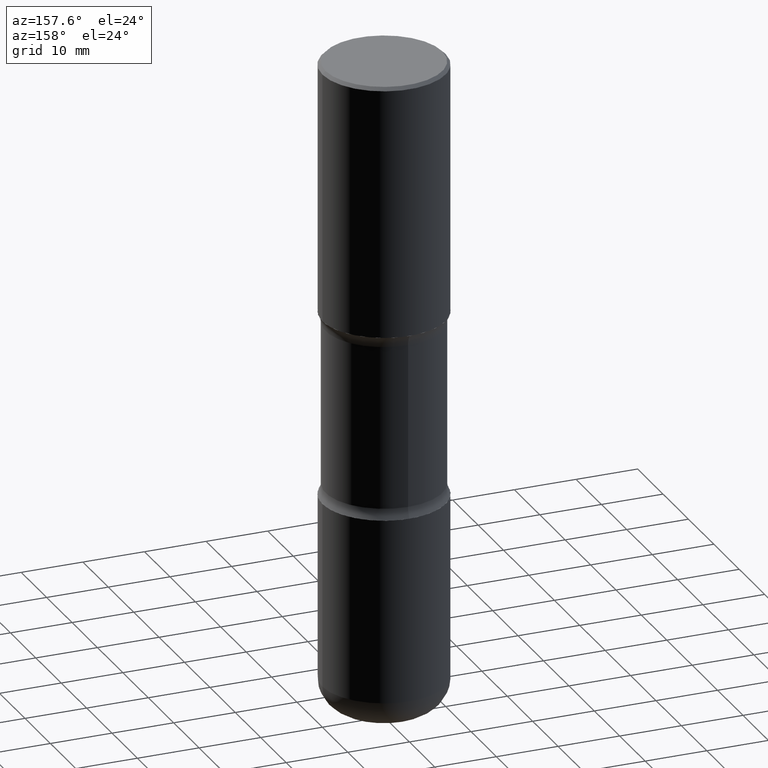
[diagram: clean part render]
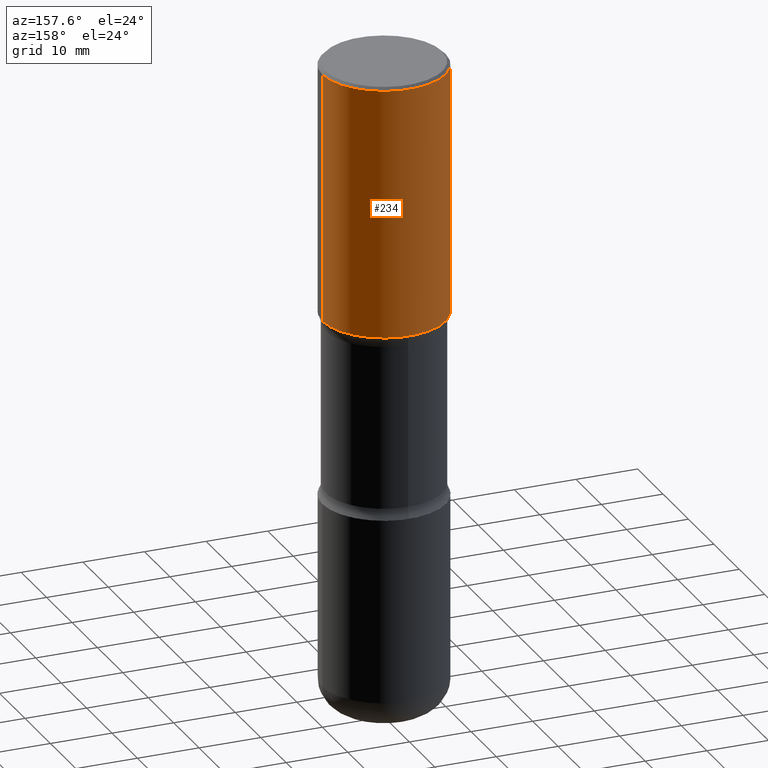
[diagram: same view with one face highlighted and labeled with its STEP entity id]
A machine part, auxiliary view. The second image highlights one B-rep face of the part: STEP entity #234.
In plain terms, the highlighted cylindrical surface (partial cylindrical patch) has radius 10 mm, axis along (-0, 0, 1).
Its self-contained STEP definition (entity closure, byte-faithful):
#3 = DIRECTION ( 'NONE',  ( 1.000000000000000000, -6.982962677686266711E-15, 0.000000000000000000 ) ) ;
#5 = CARTESIAN_POINT ( 'NONE',  ( -0.3937000000000003830, 2.797406750687517153E-15, -1.936584745033358137E-29 ) ) ;
#28 = EDGE_LOOP ( 'NONE', ( #452, #456, #228, #482 ) ) ;
#34 = AXIS2_PLACEMENT_3D ( 'NONE', #490, #359, #524 ) ;
#46 = DIRECTION ( 'NONE',  ( -2.445468806185136877E-29, 3.491481338843145188E-15, 1.000000000000000000 ) ) ;
#49 = AXIS2_PLACEMENT_3D ( 'NONE', #215, #175, #337 ) ;
#104 = VERTEX_POINT ( 'NONE', #182 ) ;
#107 = CARTESIAN_POINT ( 'NONE',  ( 0.3937000000000004385, -8.384792435231807440E-15, -1.614100000000000090 ) ) ;
#127 = VECTOR ( 'NONE', #46, 39.37007874015748143 ) ;
#133 = FACE_OUTER_BOUND ( 'NONE', #28, .T. ) ;
#137 = CARTESIAN_POINT ( 'NONE',  ( 0.3937000000000002164, -2.770807688499516917E-15, -0.02000000000000006981 ) ) ;
#143 = CIRCLE ( 'NONE', #34, 0.3937000000000004385 ) ;
#167 = VERTEX_POINT ( 'NONE', #476 ) ;
#175 = DIRECTION ( 'NONE',  ( -2.445468806185136597E-29, 3.491481338843145583E-15, 1.000000000000000000 ) ) ;
#179 = EDGE_CURVE ( 'NONE', #104, #167, #298, .T. ) ;
#182 = CARTESIAN_POINT ( 'NONE',  ( -0.3937000000000004385, -5.530807721427478371E-17, -1.614100000000000090 ) ) ;
#198 = VERTEX_POINT ( 'NONE', #137 ) ;
#215 = CARTESIAN_POINT ( 'NONE',  ( 0.000000000000000000, 0.000000000000000000, 0.000000000000000000 ) ) ;
#228 = ORIENTED_EDGE ( 'NONE', *, *, #246, .F. ) ;
#234 = ADVANCED_FACE ( 'NONE', ( #133 ), #383, .T. ) ;
#244 = LINE ( 'NONE', #510, #438 ) ;
#246 = EDGE_CURVE ( 'NONE', #198, #167, #538, .T. ) ;
#295 = DIRECTION ( 'NONE',  ( -2.445468806185136597E-29, 3.491481338843145583E-15, 1.000000000000000000 ) ) ;
#298 = LINE ( 'NONE', #5, #127 ) ;
#337 = DIRECTION ( 'NONE',  ( 1.000000000000000000, -6.982962677686266711E-15, 4.876176775795935793E-29 ) ) ;
#355 = VERTEX_POINT ( 'NONE', #107 ) ;
#359 = DIRECTION ( 'NONE',  ( -2.445468806185136597E-29, 3.491481338843145583E-15, 1.000000000000000000 ) ) ;
#368 = DIRECTION ( 'NONE',  ( -2.445468806185136877E-29, 3.491481338843145188E-15, 1.000000000000000000 ) ) ;
#383 = CYLINDRICAL_SURFACE ( 'NONE', #49, 0.3937000000000003830 ) ;
#402 = EDGE_CURVE ( 'NONE', #355, #104, #143, .T. ) ;
#438 = VECTOR ( 'NONE', #368, 39.37007874015748143 ) ;
#452 = ORIENTED_EDGE ( 'NONE', *, *, #402, .T. ) ;
#456 = ORIENTED_EDGE ( 'NONE', *, *, #179, .T. ) ;
#476 = CARTESIAN_POINT ( 'NONE',  ( -0.3937000000000002164, 2.679362779428221496E-15, -0.02000000000000006981 ) ) ;
#480 = EDGE_CURVE ( 'NONE', #355, #198, #244, .T. ) ;
#482 = ORIENTED_EDGE ( 'NONE', *, *, #480, .F. ) ;
#490 = CARTESIAN_POINT ( 'NONE',  ( 3.947231200063429727E-29, -5.635600029026721857E-15, -1.614100000000000090 ) ) ;
#502 = AXIS2_PLACEMENT_3D ( 'NONE', #514, #295, #3 ) ;
#510 = CARTESIAN_POINT ( 'NONE',  ( 0.3937000000000003830, -2.749192406205085978E-15, 1.919750796630861853E-29 ) ) ;
#514 = CARTESIAN_POINT ( 'NONE',  ( 4.890937612370289799E-31, -6.982962677686315028E-17, -0.02000000000000006981 ) ) ;
#524 = DIRECTION ( 'NONE',  ( 1.000000000000000000, -6.982962677686265922E-15, 0.000000000000000000 ) ) ;
#538 = CIRCLE ( 'NONE', #502, 0.3937000000000002164 ) ;